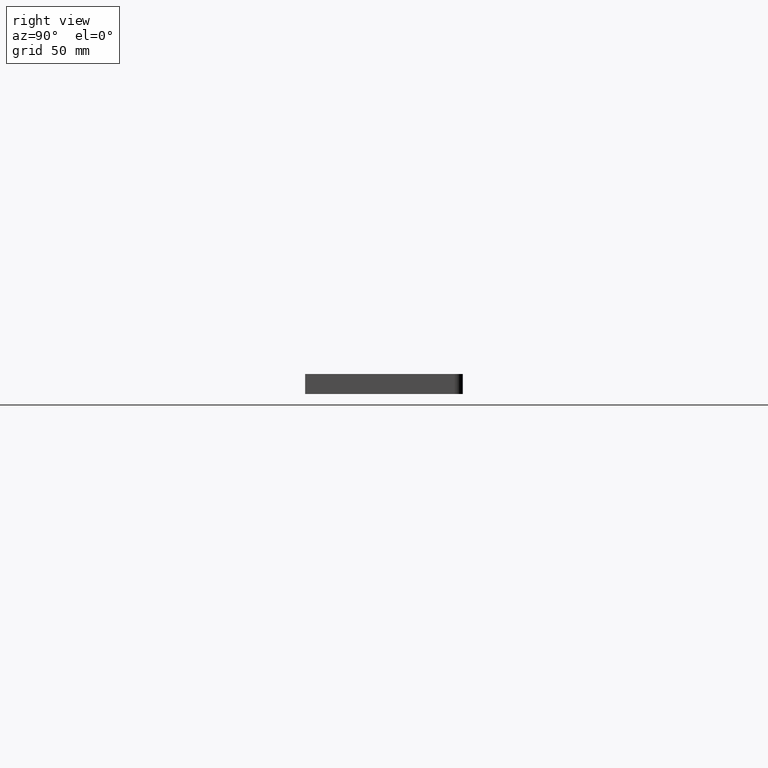
[diagram: clean part render]
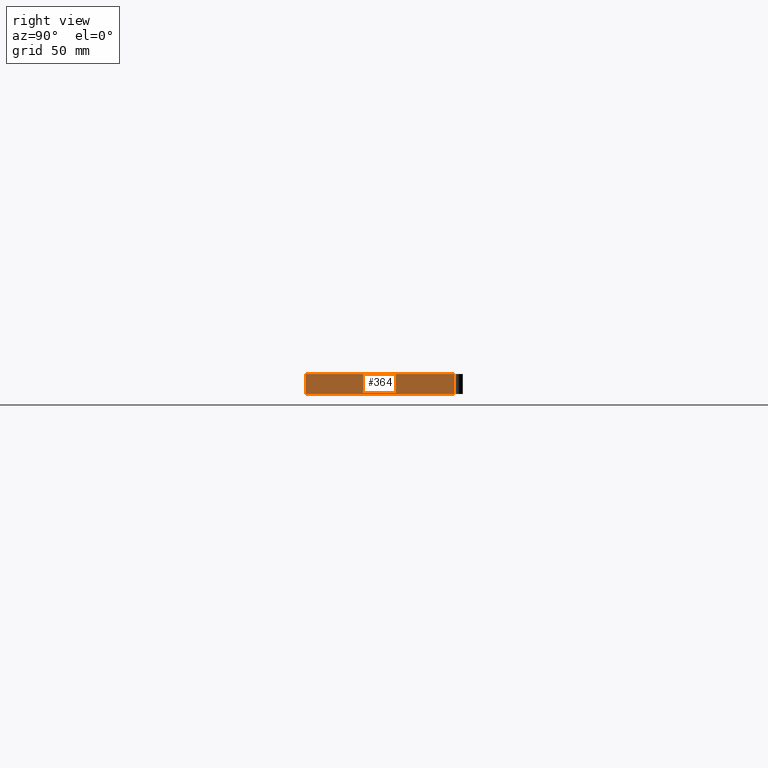
[diagram: same view with one face highlighted and labeled with its STEP entity id]
A machine part, right view. The second image highlights one B-rep face of the part: STEP entity #364.
In plain terms, the highlighted planar face has unit normal (-1, 0, 0).
Its self-contained STEP definition (entity closure, byte-faithful):
#9 = DIRECTION ( 'NONE',  ( 0.0000000000000000000, 0.0000000000000000000, 1.000000000000000000 ) ) ;
#12 = DIRECTION ( 'NONE',  ( -1.000000000000000000, 0.0000000000000000000, 0.0000000000000000000 ) ) ;
#26 = DIRECTION ( 'NONE',  ( -0.0000000000000000000, -0.0000000000000000000, -1.000000000000000000 ) ) ;
#27 = CARTESIAN_POINT ( 'NONE',  ( 430.0000000000000000, 0.0000000000000000000, 6.000000000000000000 ) ) ;
#28 = PLANE ( 'NONE',  #400 ) ;
#37 = CARTESIAN_POINT ( 'NONE',  ( 430.0000000000000000, 0.0000000000000000000, -6.000000000000000000 ) ) ;
#52 = EDGE_CURVE ( 'NONE', #361, #332, #441, .T. ) ;
#58 = CARTESIAN_POINT ( 'NONE',  ( 430.0000000000000000, 0.0000000000000000000, 6.000000000000000000 ) ) ;
#89 = EDGE_CURVE ( 'NONE', #256, #215, #289, .T. ) ;
#121 = EDGE_CURVE ( 'NONE', #332, #256, #286, .T. ) ;
#126 = VECTOR ( 'NONE', #26, 1000.000000000000000 ) ;
#155 = ORIENTED_EDGE ( 'NONE', *, *, #89, .T. ) ;
#160 = CARTESIAN_POINT ( 'NONE',  ( 430.0000000000000000, 0.0000000000000000000, -6.000000000000000000 ) ) ;
#173 = FACE_OUTER_BOUND ( 'NONE', #294, .T. ) ;
#208 = EDGE_CURVE ( 'NONE', #361, #215, #234, .T. ) ;
#215 = VERTEX_POINT ( 'NONE', #335 ) ;
#234 = LINE ( 'NONE', #367, #246 ) ;
#246 = VECTOR ( 'NONE', #347, 1000.000000000000000 ) ;
#256 = VERTEX_POINT ( 'NONE', #262 ) ;
#262 = CARTESIAN_POINT ( 'NONE',  ( 430.0000000000000000, 90.00000000000000000, -6.000000000000000000 ) ) ;
#271 = VECTOR ( 'NONE', #304, 1000.000000000000000 ) ;
#286 = LINE ( 'NONE', #160, #271 ) ;
#289 = LINE ( 'NONE', #409, #384 ) ;
#294 = EDGE_LOOP ( 'NONE', ( #418, #155, #375, #419 ) ) ;
#304 = DIRECTION ( 'NONE',  ( 0.0000000000000000000, 1.000000000000000000, 0.0000000000000000000 ) ) ;
#332 = VERTEX_POINT ( 'NONE', #37 ) ;
#334 = DIRECTION ( 'NONE',  ( -0.0000000000000000000, -0.0000000000000000000, 1.000000000000000000 ) ) ;
#335 = CARTESIAN_POINT ( 'NONE',  ( 430.0000000000000000, 90.00000000000000000, 6.000000000000000000 ) ) ;
#347 = DIRECTION ( 'NONE',  ( 0.0000000000000000000, 1.000000000000000000, 0.0000000000000000000 ) ) ;
#361 = VERTEX_POINT ( 'NONE', #58 ) ;
#364 = ADVANCED_FACE ( 'NONE', ( #173 ), #28, .F. ) ;
#367 = CARTESIAN_POINT ( 'NONE',  ( 430.0000000000000000, 0.0000000000000000000, 6.000000000000000000 ) ) ;
#375 = ORIENTED_EDGE ( 'NONE', *, *, #208, .F. ) ;
#378 = CARTESIAN_POINT ( 'NONE',  ( 430.0000000000000000, 0.0000000000000000000, 6.000000000000000000 ) ) ;
#384 = VECTOR ( 'NONE', #334, 1000.000000000000000 ) ;
#400 = AXIS2_PLACEMENT_3D ( 'NONE', #27, #12, #9 ) ;
#409 = CARTESIAN_POINT ( 'NONE',  ( 430.0000000000000000, 90.00000000000000000, 6.000000000000000000 ) ) ;
#418 = ORIENTED_EDGE ( 'NONE', *, *, #121, .T. ) ;
#419 = ORIENTED_EDGE ( 'NONE', *, *, #52, .T. ) ;
#441 = LINE ( 'NONE', #378, #126 ) ;